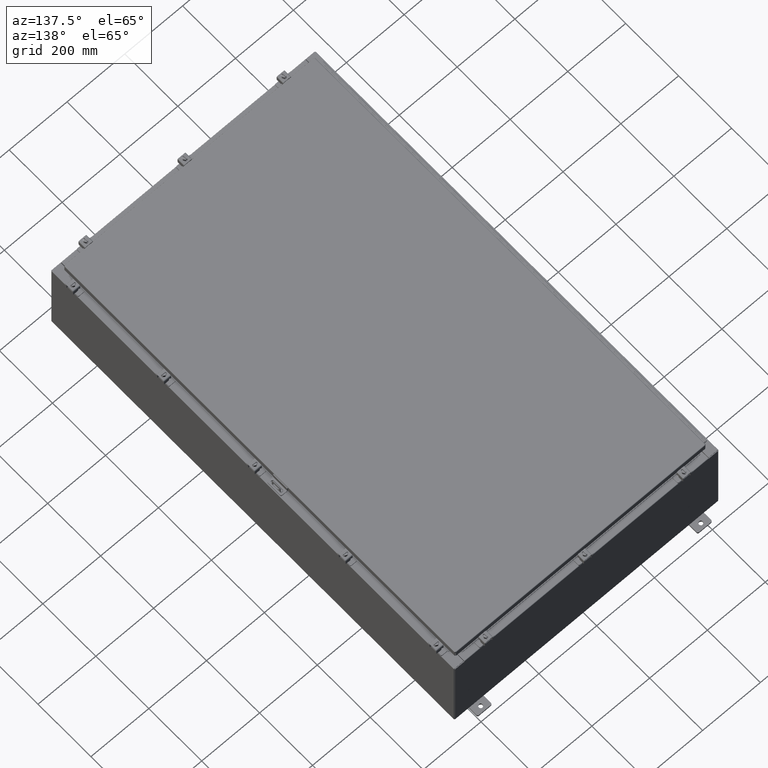
[diagram: clean part render]
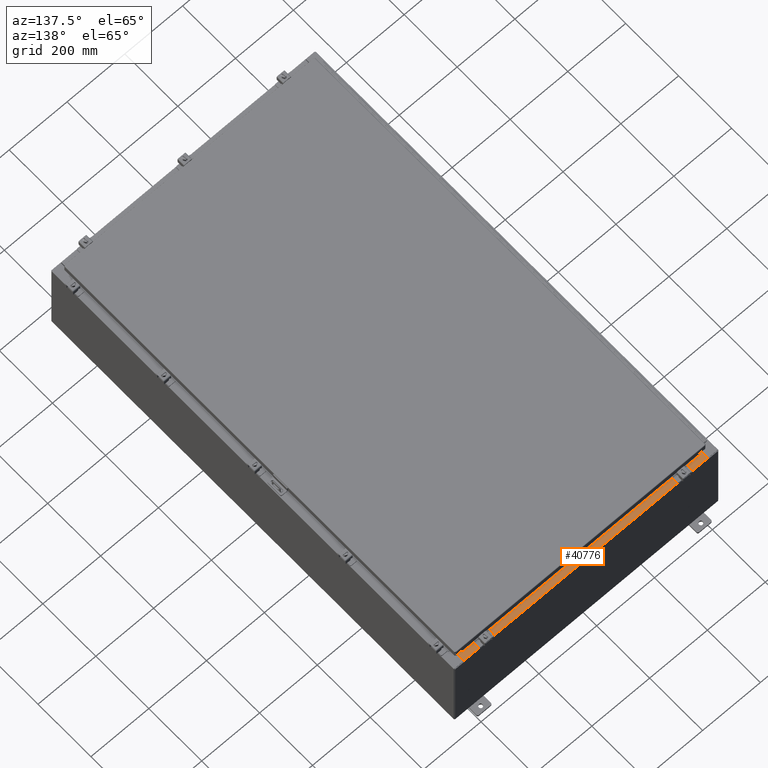
[diagram: same view with one face highlighted and labeled with its STEP entity id]
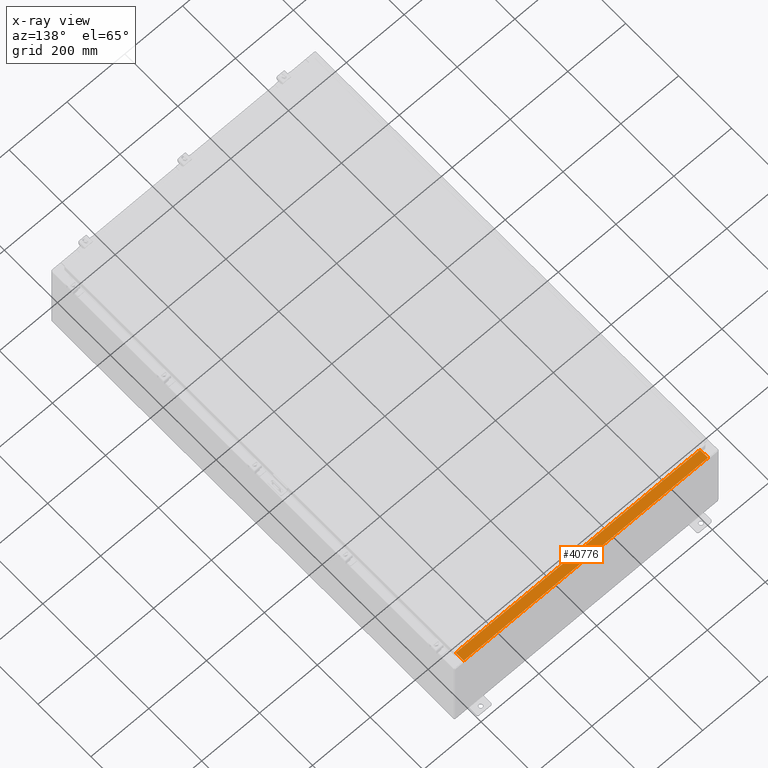
[diagram: x-ray of the same camera — body ghosted, the highlighted face saturated]
A machine part, auxiliary view. The second image highlights one B-rep face of the part: STEP entity #40776.
The next image is the same camera in x-ray: the body ghosted, the highlighted face saturated — about 0% of this face is hidden behind the body in this view.
In plain terms, the highlighted planar face has unit normal (0, 0, 1).
Its self-contained STEP definition (entity closure, byte-faithful):
#1782 = CARTESIAN_POINT ( 'NONE',  ( -2.276882898771239300E-018, 1.610972251716581800E-014, 5.999999999999999100 ) ) ;
#4200 = CARTESIAN_POINT ( 'NONE',  ( 16.63720000000000400, -1.287299999999999400, 6.000000000000003600 ) ) ;
#6583 = EDGE_CURVE ( 'NONE', #32764, #54244, #11633, .T. ) ;
#6736 = DIRECTION ( 'NONE',  ( 0.0000000000000000000, -1.000000000000000000, 2.674785894579892700E-015 ) ) ;
#8873 = LINE ( 'NONE', #53678, #59046 ) ;
#11184 = EDGE_CURVE ( 'NONE', #24920, #32764, #58261, .T. ) ;
#11633 = LINE ( 'NONE', #60415, #22975 ) ;
#14803 = EDGE_CURVE ( 'NONE', #41354, #24920, #23238, .T. ) ;
#19691 = DIRECTION ( 'NONE',  ( -1.000000000000000000, 3.284023746380717400E-017, -8.784060394284559800E-032 ) ) ;
#22975 = VECTOR ( 'NONE', #60137, 39.37007874015748100 ) ;
#23238 = LINE ( 'NONE', #51018, #62062 ) ;
#24920 = VERTEX_POINT ( 'NONE', #4200 ) ;
#30567 = CARTESIAN_POINT ( 'NONE',  ( 16.63720000000000400, -0.08769999999999948700, 5.999999999999999100 ) ) ;
#30846 = PLANE ( 'NONE',  #60633 ) ;
#32523 = EDGE_LOOP ( 'NONE', ( #53256, #33092, #39888, #43020 ) ) ;
#32764 = VERTEX_POINT ( 'NONE', #52174 ) ;
#33092 = ORIENTED_EDGE ( 'NONE', *, *, #11184, .F. ) ;
#35190 = CARTESIAN_POINT ( 'NONE',  ( 16.63720000000000400, -1.287299999999999400, 6.000000000000001800 ) ) ;
#35408 = DIRECTION ( 'NONE',  ( -1.000000000000000000, 0.0000000000000000000, 0.0000000000000000000 ) ) ;
#35753 = DIRECTION ( 'NONE',  ( 0.0000000000000000000, 2.674785894579892700E-015, 1.000000000000000000 ) ) ;
#39888 = ORIENTED_EDGE ( 'NONE', *, *, #14803, .F. ) ;
#40776 = ADVANCED_FACE ( 'NONE', ( #58691 ), #30846, .T. ) ;
#41354 = VERTEX_POINT ( 'NONE', #30567 ) ;
#43020 = ORIENTED_EDGE ( 'NONE', *, *, #51410, .T. ) ;
#45270 = VECTOR ( 'NONE', #35408, 39.37007874015748100 ) ;
#50514 = DIRECTION ( 'NONE',  ( -0.0000000000000000000, -1.000000000000000000, 3.566381192773190000E-015 ) ) ;
#51018 = CARTESIAN_POINT ( 'NONE',  ( 16.63720000000000400, -1.300299999999999800, 6.000000000000003600 ) ) ;
#51410 = EDGE_CURVE ( 'NONE', #41354, #54244, #8873, .T. ) ;
#52174 = CARTESIAN_POINT ( 'NONE',  ( -16.63719999999999600, -1.287299999999998600, 6.000000000000002700 ) ) ;
#53256 = ORIENTED_EDGE ( 'NONE', *, *, #6583, .F. ) ;
#53678 = CARTESIAN_POINT ( 'NONE',  ( -5.156971724347648400E-018, -0.08769999999999972300, 5.999999999999999100 ) ) ;
#54244 = VERTEX_POINT ( 'NONE', #62328 ) ;
#58261 = LINE ( 'NONE', #35190, #45270 ) ;
#58691 = FACE_OUTER_BOUND ( 'NONE', #32523, .T. ) ;
#59046 = VECTOR ( 'NONE', #19691, 39.37007874015748100 ) ;
#60137 = DIRECTION ( 'NONE',  ( -0.0000000000000000000, 1.000000000000000000, -2.674785894579892700E-015 ) ) ;
#60415 = CARTESIAN_POINT ( 'NONE',  ( -16.63719999999999600, -0.07469999999999973900, 5.999999999999999100 ) ) ;
#60633 = AXIS2_PLACEMENT_3D ( 'NONE', #1782, #35753, #6736 ) ;
#62062 = VECTOR ( 'NONE', #50514, 39.37007874015748100 ) ;
#62328 = CARTESIAN_POINT ( 'NONE',  ( -16.63719999999999600, -0.08769999999999972300, 5.999999999999999100 ) ) ;